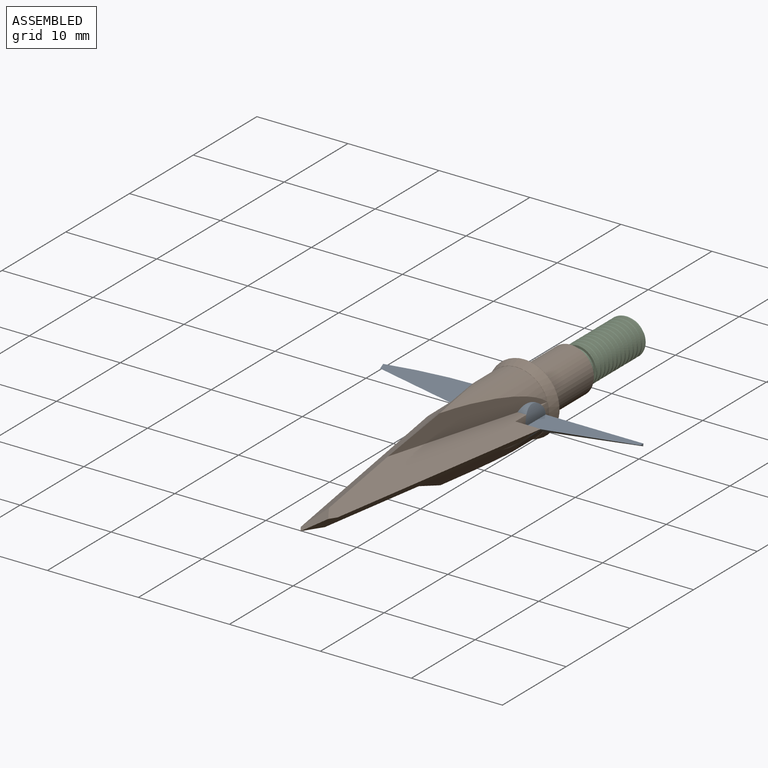
[diagram: assembled view]
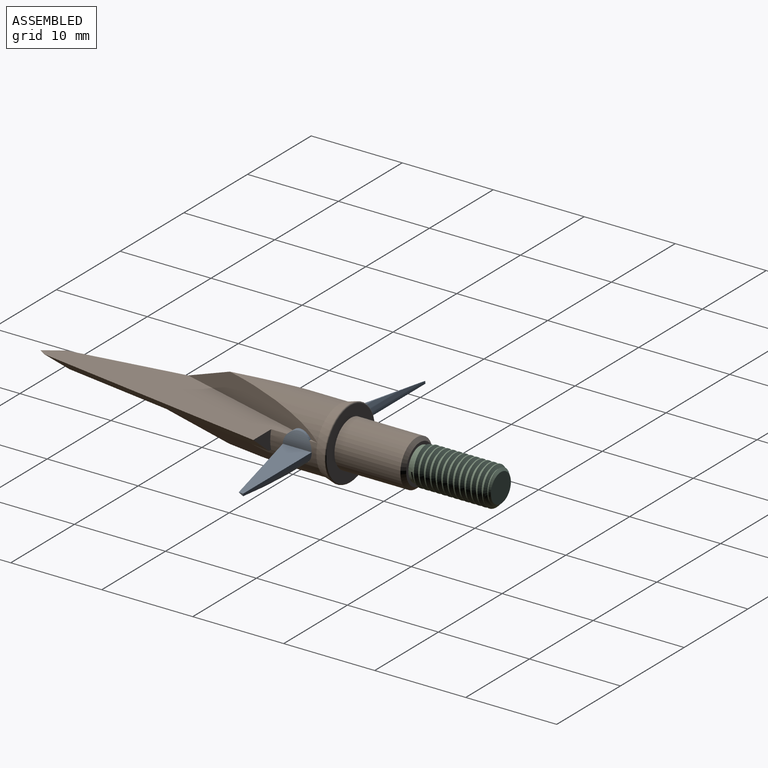
[diagram: assembled view, second angle]
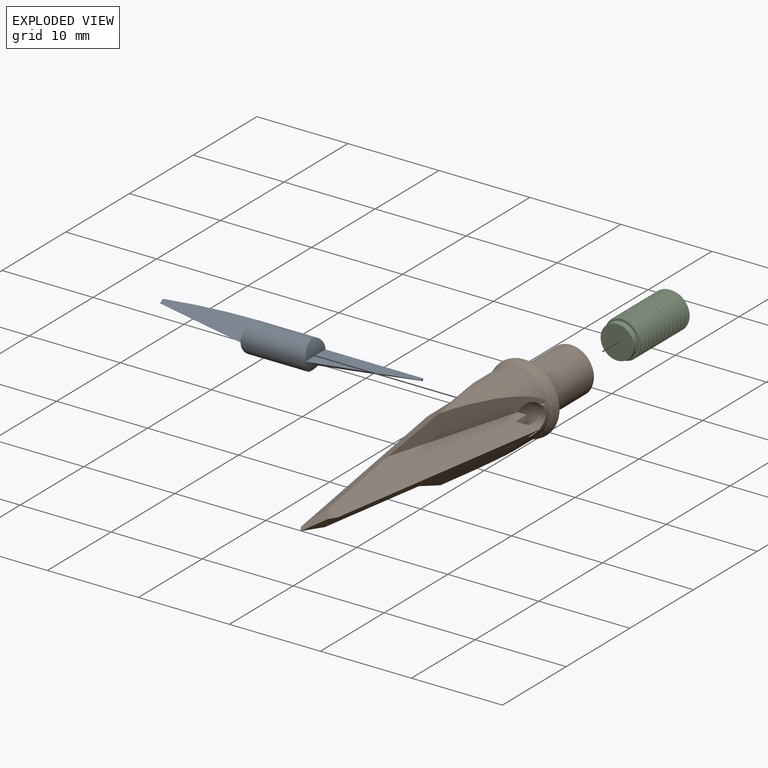
[diagram: exploded view]
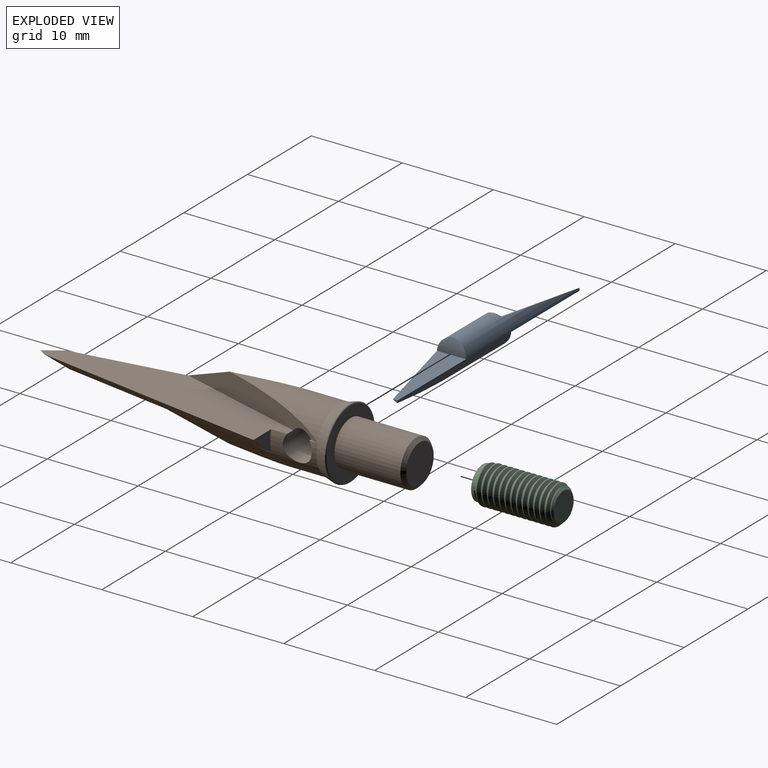
[diagram: exploded view, second angle]
ASSEMBLY  parts=3 mates=2
PART A: 13 faces, bbox 3.3x3.3x28.7 mm
  f0: cylinder r=1.59mm len=28.58mm, axis (0,0,-1), area 87.8mm2, adj f1,f2,f3,f4,f6,f7,f8,f9
  f1: cylinder r=3.56mm len=2.38mm, axis (0,1,0), area 1.6mm2, adj f0,f5,f9,f12
  f2: plane 10.73x3.18mm, normal (-1,0,0), area 19.8mm2, adj f0,f4,f7,f11
  f3: cylinder r=3.56mm len=3.18mm, axis (0,1,0), area 4.1mm2, adj f0,f6
  f4: plane 11.09x3.24mm, normal (0.87,-0.49,0.12), area 19.3mm2, adj f0,f2,f8,f11
  f5: plane 0.07x0.04mm, normal (-0.5,0.86,0.12), area 0mm2, adj f1,f9,f12
  f6: plane 10.73x3.18mm, normal (1,0,0), area 19.8mm2, adj f0,f3,f9,f10
  f7: cylinder r=3.56mm len=3.18mm, axis (0,1,0), area 4.1mm2, adj f0,f2
  f8: cylinder r=3.56mm len=2.38mm, axis (0,1,0), area 1.6mm2, adj f0,f4
  f9: plane 11.03x3.17mm, normal (-0.87,-0.49,-0.12), area 19.3mm2, adj f0,f1,f5,f6,f10,f12
  f10: plane 0.51x0.27mm, normal (0,0,-1), area 0.1mm2, adj f0,f6,f9
  f11: plane 0.51x0.27mm, normal (0,0,1), area 0.1mm2, adj f0,f2,f4
  f12: plane 1.08x0.59mm, normal (0.08,0.11,-0.99), area 0.1mm2, adj f1,f5,f9
PART B: 28 faces, bbox 12.4x40.7x8.5 mm
  f0: plane 28.42x7.91mm, normal (0,0,-1), area 115.7mm2, adj f1,f4,f6,f18,f19,f20,f21,f22
  f1: cylinder r=3.56mm len=12.04mm, axis (0,-1,0), area 52.5mm2, adj f0,f4,f6,f7,f10,f14,f15,f16
  f2: plane 28.42x7.91mm, normal (0,0,1), area 115.7mm2, adj f3,f4,f5,f14,f18,f19,f20,f21
  f3: cylinder r=3.56mm len=12.05mm, axis (0,-1,0), area 52mm2, adj f2,f4,f5,f8,f9,f17,f23,f24
  f4: cylinder r=1.59mm len=7.11mm, axis (-1,0,0), area 64.7mm2, adj f0,f1,f2,f3,f7,f8,f14,f23
  f5: plane 2.8x2.03mm, normal (0,1,0), area 3mm2, adj f2,f3,f17,f20
  f6: plane 2.8x2.03mm, normal (0,1,0), area 3mm2, adj f0,f1,f16,f21
  f7: plane 0.89x0.26mm, normal (0,0,-1), area 0.1mm2, adj f1,f4,f23
  f8: plane 0.89x0.26mm, normal (0,0,1), area 0.1mm2, adj f3,f4,f14
  f9: plane 7x4.59mm, normal (0,-1,0), area 0.2mm2, adj f3,f11
  f10: plane 7x4.59mm, normal (0,-1,0), area 0.2mm2, adj f1,f11
  f11: cone r=3.94mm half-angle=16deg, axis (0,1,0), area 27mm2, adj f9,f10,f13
  f12: plane 7.54x7.54mm, normal (0,1,0), area 24.3mm2, adj f13,f25
  f13: torus R=3.77mm, axis (0,1,0), area 5.7mm2, adj f11,f12
  f14: plane 17.81x5.15mm, normal (0.96,-0.28,0), area 30.1mm2, adj f1,f2,f4,f8,f15
  f15: plane 14.43x3.35mm, normal (-0.7,-0.11,0.71), area 36.7mm2, adj f1,f14,f21
  f16: plane 2.13x0.34mm, normal (0,0,1), area 0.4mm2, adj f1,f6,f21
  f17: plane 2.13x0.34mm, normal (0,0,-1), area 0.4mm2, adj f3,f5,f20
  f18: plane 3.55x2.03mm, normal (-0.52,-0.34,0.78), area 5.3mm2, adj f0,f2,f19,f21
  f19: plane 3.55x2.03mm, normal (0.52,-0.34,-0.78), area 5.3mm2, adj f0,f2,f18,f20
  f20: plane 25.9x6.43mm, normal (0.63,-0.1,-0.77), area 81mm2, adj f0,f2,f5,f17,f19,f24
  f21: plane 25.9x6.43mm, normal (-0.63,-0.1,0.77), area 81mm2, adj f0,f2,f6,f15,f16,f18
  f22: plane 0x0mm, normal (0,-1,0), area 0mm2, adj f0,f23,f24
  f23: plane 17.82x5.15mm, normal (-0.96,-0.28,0), area 30.1mm2, adj f0,f3,f4,f7,f22,f24
  f24: plane 14.45x3.35mm, normal (0.7,-0.11,-0.71), area 36.7mm2, adj f3,f20,f22,f23
  f25: cylinder r=2.54mm len=7.24mm, axis (0,-1,0), area 115.5mm2, adj f12,f27
  f26: plane 4.32x4.32mm, normal (0,1,0), area 14.6mm2, adj f27
  f27: cone r=2.16mm half-angle=45deg, axis (0,-1,0), area 8mm2, adj f25,f26
PART C: 12 faces, bbox 4.2x9.1x4.9 mm
  f0: plane 3.98x3.83mm, normal (0,-1,0), area 1.3mm2, adj f1,f3,f5,f6,f7
  f1: cylinder r=2.08mm len=7.75mm, axis (0,-1,0), area 9.2mm2, adj f0,f5,f6,f7,f10
  f2: plane 3.15x3.15mm, normal (0,1,0), area 7.8mm2, adj f11
  f3: cylinder r=1.83mm len=3.66mm, axis (0,1,0), area 6.4mm2, adj f0,f4,f6,f7,f8
  f4: plane 3.66x3.66mm, normal (0,-1,0), area 10.5mm2, adj f3
  f5: plane 0.06x0.03mm, normal (0,0,-1), area 0mm2, adj f0,f1,f6
  f6: bspline ~8.57x4.81mm, area 62.6mm2, adj f0,f1,f3,f5,f8,f9,f10,f11
  f7: bspline ~8.68x4.81mm, area 63.2mm2, adj f0,f1,f3,f8,f9,f10
  f8: plane 0.21x0.11mm, normal (0,0,-1), area 0mm2, adj f3,f6,f7,f9
  f9: cylinder r=1.72mm len=8.38mm, axis (0,1,0), area 30.8mm2, adj f6,f7,f8,f11
  f10: cone r=1.57mm half-angle=45deg, axis (0,-1,0), area 0.8mm2, adj f1,f6,f7,f11
  f11: cone r=1.57mm half-angle=45deg, axis (0,-1,0), area 4.6mm2, adj f2,f6,f9,f10
PLACE A rot(axis=(0,1,0),90deg) t=(0,2.97,0)mm
PLACE B at identity
PLACE C at identity fixed
MATE cylindrical B.f4 <-> A.f0  axis (-1,0,0) through (0,2.97,0)mm
MATE fastened B.f25 <-> C.f3  axis (0,1,0) through (0,13.97,0)mm
